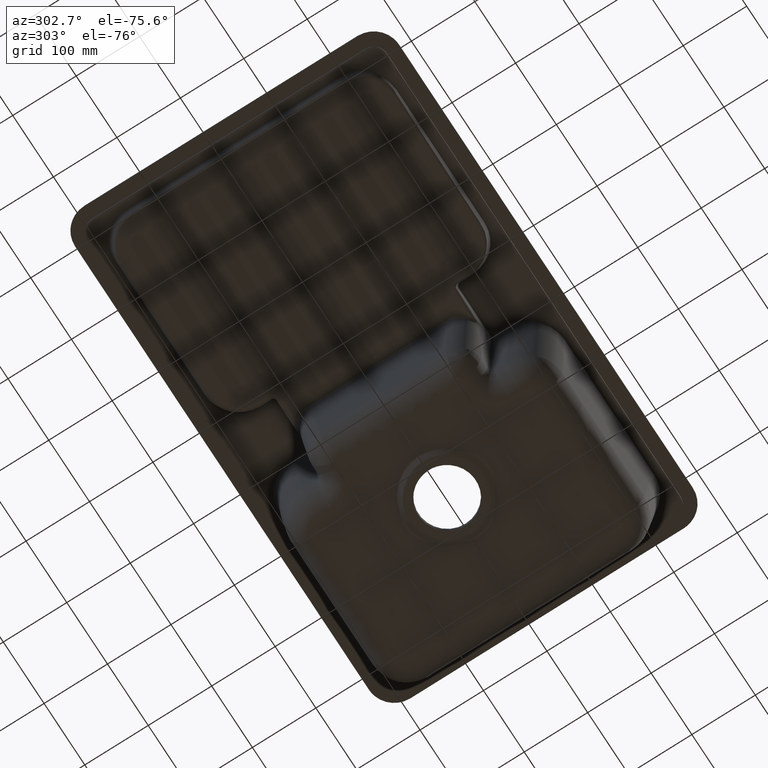
[diagram: clean part render]
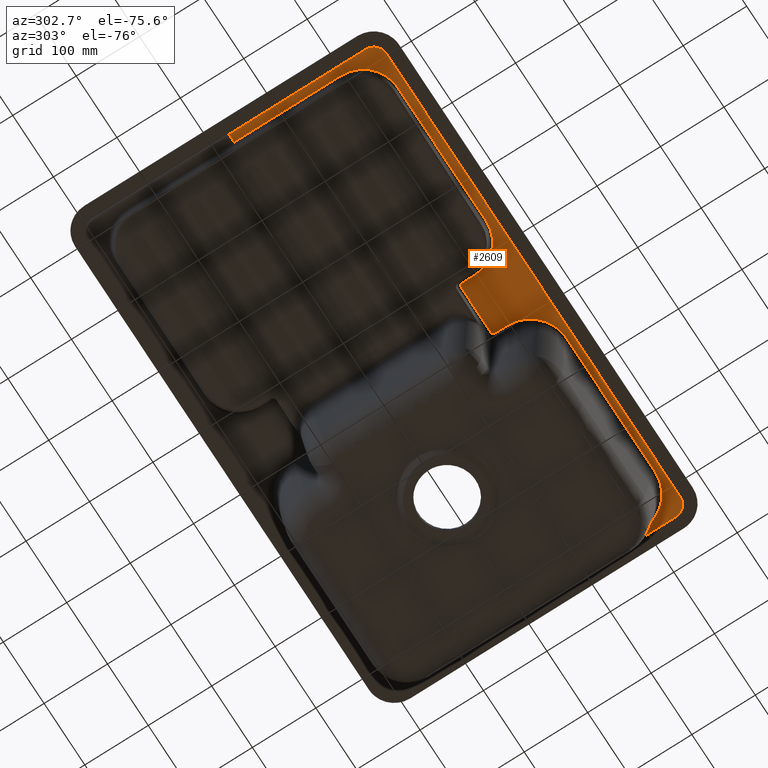
[diagram: same view with one face highlighted and labeled with its STEP entity id]
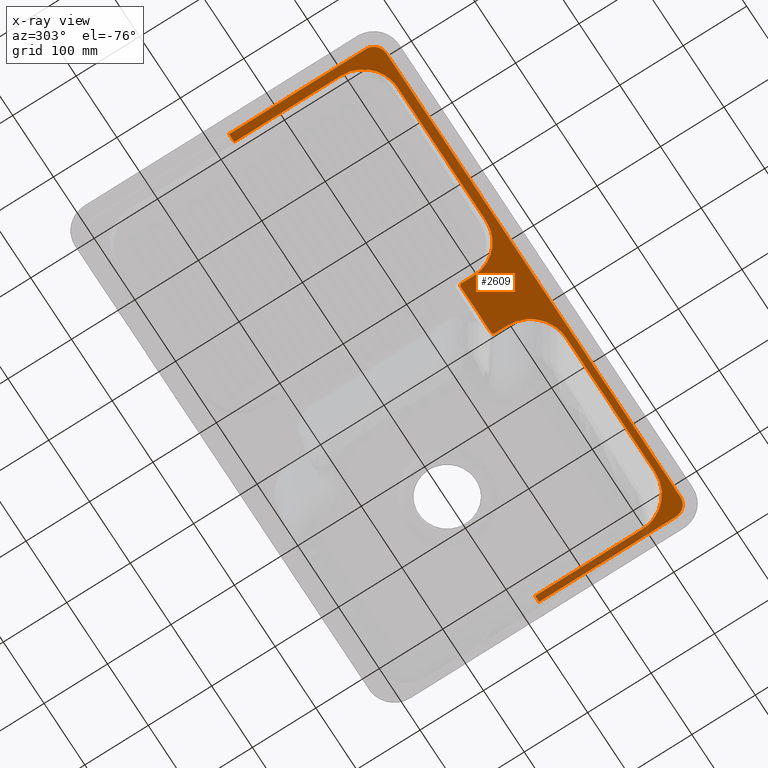
[diagram: x-ray of the same camera — body ghosted, the highlighted face saturated]
A machine part, auxiliary view. The second image highlights one B-rep face of the part: STEP entity #2609.
The next image is the same camera in x-ray: the body ghosted, the highlighted face saturated — about 8% of this face is hidden behind the body in this view.
In plain terms, the highlighted planar face has unit normal (0, 0, -1).
Its self-contained STEP definition (entity closure, byte-faithful):
#1504=B_SPLINE_CURVE_WITH_KNOTS('',3,(#14741,#14742,#14743,#14744,#14745,
#14746),.UNSPECIFIED.,.F.,.F.,(4,2,4),(0.,0.5,1.),.UNSPECIFIED.);
#1507=B_SPLINE_CURVE_WITH_KNOTS('',3,(#14768,#14769,#14770,#14771,#14772,
#14773),.UNSPECIFIED.,.F.,.F.,(4,2,4),(0.,0.5,1.),.UNSPECIFIED.);
#1849=B_SPLINE_CURVE_WITH_KNOTS('',3,(#23468,#23469,#23470,#23471),
 .UNSPECIFIED.,.F.,.F.,(4,4),(0.,1.),.UNSPECIFIED.);
#1850=B_SPLINE_CURVE_WITH_KNOTS('',3,(#23472,#23473,#23474,#23475),
 .UNSPECIFIED.,.F.,.F.,(4,4),(0.,1.),.UNSPECIFIED.);
#1899=B_SPLINE_CURVE_WITH_KNOTS('',3,(#24439,#24440,#24441,#24442),
 .UNSPECIFIED.,.F.,.F.,(4,4),(0.,1.),.UNSPECIFIED.);
#1900=B_SPLINE_CURVE_WITH_KNOTS('',3,(#24446,#24447,#24448,#24449,#24450,
#24451,#24452,#24453,#24454,#24455,#24456,#24457,#24458,#24459,#24460,#24461),
 .UNSPECIFIED.,.F.,.F.,(4,2,2,2,2,2,2,4),(0.,0.125,0.25,0.374999999999999,
0.499999999999999,0.624999999999999,0.749999999999999,1.),.UNSPECIFIED.);
#1901=B_SPLINE_CURVE_WITH_KNOTS('',3,(#24516,#24517,#24518,#24519,#24520,
#24521,#24522,#24523,#24524,#24525,#24526,#24527,#24528,#24529,#24530,#24531),
 .UNSPECIFIED.,.F.,.F.,(4,2,2,2,2,2,2,4),(0.,0.125000000000001,0.250000000000002,
0.375000000000003,0.500000000000004,0.625000000000004,0.750000000000005,
1.),.UNSPECIFIED.);
#1902=B_SPLINE_CURVE_WITH_KNOTS('',3,(#24584,#24585,#24586,#24587),
 .UNSPECIFIED.,.F.,.F.,(4,4),(0.,1.),.UNSPECIFIED.);
#1903=B_SPLINE_CURVE_WITH_KNOTS('',3,(#24593,#24594,#24595,#24596,#24597,
#24598,#24599,#24600,#24601,#24602,#24603,#24604),.UNSPECIFIED.,.F.,.F.,
(4,2,2,2,2,4),(0.,0.119043684676906,0.33060971908279,0.549960495010358,
0.775170534637991,1.),.UNSPECIFIED.);
#1904=B_SPLINE_CURVE_WITH_KNOTS('',3,(#24623,#24624,#24625,#24626,#24627,
#24628,#24629,#24630,#24631,#24632,#24633,#24634,#24635,#24636,#24637,#24638),
 .UNSPECIFIED.,.F.,.F.,(4,2,2,2,2,2,2,4),(0.,0.125,0.25,0.375,0.5,0.625,
0.75,1.),.UNSPECIFIED.);
#1905=B_SPLINE_CURVE_WITH_KNOTS('',3,(#24699,#24700,#24701,#24702,#24703,
#24704,#24705,#24706,#24707,#24708,#24709,#24710),.UNSPECIFIED.,.F.,.F.,
(4,2,2,2,2,4),(0.,0.140539717625024,0.354928383959337,0.56957508617983,
0.784808723160265,1.),.UNSPECIFIED.);
#1906=B_SPLINE_CURVE_WITH_KNOTS('',3,(#24729,#24730,#24731,#24732,#24733,
#24734,#24735,#24736,#24737,#24738,#24739,#24740,#24741,#24742,#24743,#24744),
 .UNSPECIFIED.,.F.,.F.,(4,2,2,2,2,2,2,4),(0.,0.125,0.25,0.375,0.5,0.625,
0.75,1.),.UNSPECIFIED.);
#2609=ADVANCED_FACE('',(#3442),#3043,.T.);
#3043=PLANE('',#11920);
#3442=FACE_OUTER_BOUND('',#4207,.T.);
#4207=EDGE_LOOP('',(#6314,#6315,#6316,#6317,#6318,#6319,#6320,#6321,#6322,
#6323,#6324,#6325,#6326,#6327,#6328,#6329,#6330,#6331,#6332,#6333));
#6314=ORIENTED_EDGE('',*,*,#9194,.T.);
#6315=ORIENTED_EDGE('',*,*,#9191,.T.);
#6316=ORIENTED_EDGE('',*,*,#9935,.T.);
#6317=ORIENTED_EDGE('',*,*,#10016,.T.);
#6318=ORIENTED_EDGE('',*,*,#10018,.T.);
#6319=ORIENTED_EDGE('',*,*,#10020,.T.);
#6320=ORIENTED_EDGE('',*,*,#10022,.T.);
#6321=ORIENTED_EDGE('',*,*,#10024,.T.);
#6322=ORIENTED_EDGE('',*,*,#10028,.T.);
#6323=ORIENTED_EDGE('',*,*,#10032,.T.);
#6324=ORIENTED_EDGE('',*,*,#10036,.T.);
#6325=ORIENTED_EDGE('',*,*,#10039,.T.);
#6326=ORIENTED_EDGE('',*,*,#10037,.T.);
#6327=ORIENTED_EDGE('',*,*,#10033,.T.);
#6328=ORIENTED_EDGE('',*,*,#10029,.T.);
#6329=ORIENTED_EDGE('',*,*,#10025,.T.);
#6330=ORIENTED_EDGE('',*,*,#9934,.T.);
#6331=ORIENTED_EDGE('',*,*,#9203,.T.);
#6332=ORIENTED_EDGE('',*,*,#9200,.T.);
#6333=ORIENTED_EDGE('',*,*,#9197,.T.);
#8141=VERTEX_POINT('',#14671);
#8149=VERTEX_POINT('',#14725);
#8151=VERTEX_POINT('',#14731);
#8153=VERTEX_POINT('',#14747);
#8155=VERTEX_POINT('',#14758);
#8157=VERTEX_POINT('',#14774);
#8594=VERTEX_POINT('',#22914);
#8600=VERTEX_POINT('',#23063);
#8654=VERTEX_POINT('',#24438);
#8655=VERTEX_POINT('',#24445);
#8656=VERTEX_POINT('',#24511);
#8657=VERTEX_POINT('',#24515);
#8658=VERTEX_POINT('',#24581);
#8659=VERTEX_POINT('',#24588);
#8660=VERTEX_POINT('',#24592);
#8661=VERTEX_POINT('',#24639);
#8662=VERTEX_POINT('',#24690);
#8663=VERTEX_POINT('',#24694);
#8664=VERTEX_POINT('',#24698);
#8665=VERTEX_POINT('',#24745);
#9191=EDGE_CURVE('',#8151,#8141,#10958,.T.);
#9194=EDGE_CURVE('',#8153,#8151,#1504,.T.);
#9197=EDGE_CURVE('',#8155,#8153,#10962,.T.);
#9200=EDGE_CURVE('',#8157,#8155,#1507,.T.);
#9203=EDGE_CURVE('',#8149,#8157,#10966,.T.);
#9934=EDGE_CURVE('',#8600,#8149,#1849,.T.);
#9935=EDGE_CURVE('',#8141,#8594,#1850,.T.);
#10016=EDGE_CURVE('',#8594,#8654,#1899,.T.);
#10018=EDGE_CURVE('',#8654,#8655,#1900,.T.);
#10020=EDGE_CURVE('',#8655,#8656,#11049,.T.);
#10022=EDGE_CURVE('',#8656,#8657,#1901,.T.);
#10024=EDGE_CURVE('',#8657,#8658,#11050,.T.);
#10025=EDGE_CURVE('',#8659,#8600,#1902,.T.);
#10028=EDGE_CURVE('',#8658,#8660,#1903,.T.);
#10029=EDGE_CURVE('',#8661,#8659,#1904,.T.);
#10032=EDGE_CURVE('',#8660,#8662,#11051,.T.);
#10033=EDGE_CURVE('',#8663,#8661,#11052,.T.);
#10036=EDGE_CURVE('',#8662,#8664,#1905,.T.);
#10037=EDGE_CURVE('',#8665,#8663,#1906,.T.);
#10039=EDGE_CURVE('',#8664,#8665,#11053,.T.);
#10958=LINE('',#14730,#11211);
#10962=LINE('',#14757,#11216);
#10966=LINE('',#14783,#11221);
#11049=LINE('',#24512,#11304);
#11050=LINE('',#24582,#11305);
#11051=LINE('',#24691,#11306);
#11052=LINE('',#24693,#11307);
#11053=LINE('',#24795,#11308);
#11211=VECTOR('',#12460,1.);
#11216=VECTOR('',#12467,1.);
#11221=VECTOR('',#12474,1.);
#11304=VECTOR('',#13427,1.);
#11305=VECTOR('',#13434,1.);
#11306=VECTOR('',#13447,1.);
#11307=VECTOR('',#13450,1.);
#11308=VECTOR('',#13459,1.);
#11920=AXIS2_PLACEMENT_3D('',#24994,#13488,#13489);
#12460=DIRECTION('',(1.39079142574835E-14,1.,0.));
#12467=DIRECTION('',(-1.,4.15719161087144E-14,0.));
#12474=DIRECTION('',(0.,-1.,0.));
#13427=DIRECTION('',(1.,0.,0.));
#13434=DIRECTION('',(0.,1.,0.));
#13447=DIRECTION('',(1.,0.,0.));
#13450=DIRECTION('',(1.,0.,0.));
#13459=DIRECTION('',(0.,-1.,0.));
#13488=DIRECTION('',(0.,0.,-1.));
#13489=DIRECTION('',(-0.843227198057321,-0.53755733876155,0.));
#14671=CARTESIAN_POINT('',(-380.50774798841,-1000.00000000539,-14.54));
#14725=CARTESIAN_POINT('',(380.50774798841,-1000.00000001077,-14.54));
#14730=CARTESIAN_POINT('',(-380.507747988409,-1107.76605769764,-14.54));
#14731=CARTESIAN_POINT('',(-380.50774798841,-1215.53211491045,-14.54));
#14741=CARTESIAN_POINT('',(-360.532114913926,-1235.50774798841,-14.54));
#14742=CARTESIAN_POINT('',(-365.818523167871,-1235.50299598645,-14.54));
#14743=CARTESIAN_POINT('',(-370.932380789627,-1233.38831314729,-14.54));
#14744=CARTESIAN_POINT('',(-378.388749539718,-1225.93283673726,-14.54));
#14745=CARTESIAN_POINT('',(-380.502998925999,-1220.82088733875,-14.54));
#14746=CARTESIAN_POINT('',(-380.50774798841,-1215.53211491393,-14.54));
#14747=CARTESIAN_POINT('',(-360.532114884531,-1235.5077479884,-14.54));
#14757=CARTESIAN_POINT('',(1.41137102005473E-11,-1235.5077479884,-14.54));
#14758=CARTESIAN_POINT('',(360.532114904128,-1235.50774798841,-14.54));
#14768=CARTESIAN_POINT('',(380.50774798841,-1215.53211491393,-14.54));
#14769=CARTESIAN_POINT('',(380.502995986426,-1220.81852316883,-14.54));
#14770=CARTESIAN_POINT('',(378.388313140216,-1225.93238079433,-14.54));
#14771=CARTESIAN_POINT('',(370.93283674433,-1233.38874953501,-14.54));
#14772=CARTESIAN_POINT('',(365.820887346911,-1235.50299892602,-14.54));
#14773=CARTESIAN_POINT('',(360.532114913926,-1235.50774798841,-14.54));
#14774=CARTESIAN_POINT('',(380.50774798841,-1215.53211490175,-14.54));
#14783=CARTESIAN_POINT('',(380.50774798841,-1107.76605769764,-14.54));
#22914=CARTESIAN_POINT('',(-367.899866231729,-1000.,-14.54));
#23063=CARTESIAN_POINT('',(370.814995985891,-1000.,-14.54));
#23468=CARTESIAN_POINT('',(370.81499598589,-1000.,-14.54));
#23469=CARTESIAN_POINT('',(374.045913320063,-1000.,-14.54));
#23470=CARTESIAN_POINT('',(377.276830654236,-1000.,-14.54));
#23471=CARTESIAN_POINT('',(380.507747988409,-1000.,-14.54));
#23472=CARTESIAN_POINT('',(-380.50774798841,-1000.,-14.54));
#23473=CARTESIAN_POINT('',(-376.305120736183,-1000.,-14.54));
#23474=CARTESIAN_POINT('',(-372.102493483956,-1000.,-14.54));
#23475=CARTESIAN_POINT('',(-367.899866231729,-1000.,-14.54));
#24438=CARTESIAN_POINT('',(-367.89986623173,-1167.84209413325,-14.54));
#24439=CARTESIAN_POINT('',(-367.899866231729,-1000.,-14.54));
#24440=CARTESIAN_POINT('',(-367.899866231729,-1055.94736471108,-14.54));
#24441=CARTESIAN_POINT('',(-367.899866231729,-1111.89472942217,-14.54));
#24442=CARTESIAN_POINT('',(-367.899866231729,-1167.84209413325,-14.54));
#24445=CARTESIAN_POINT('',(-312.842094133253,-1222.89986623173,-14.54));
#24446=CARTESIAN_POINT('',(-367.89986623173,-1167.84209413325,-14.54));
#24447=CARTESIAN_POINT('',(-367.89986623173,-1171.48593051998,-14.54));
#24448=CARTESIAN_POINT('',(-367.563735587139,-1175.07401392228,-14.54));
#24449=CARTESIAN_POINT('',(-366.221554230273,-1182.13906308942,-14.54));
#24450=CARTESIAN_POINT('',(-365.199831803539,-1185.65220901642,-14.54));
#24451=CARTESIAN_POINT('',(-362.498260245736,-1192.36597913369,-14.54));
#24452=CARTESIAN_POINT('',(-360.834852586598,-1195.5496295063,-14.54));
#24453=CARTESIAN_POINT('',(-356.878309257049,-1201.56797599968,-14.54));
#24454=CARTESIAN_POINT('',(-354.557223848443,-1204.42190248232,-14.54));
#24455=CARTESIAN_POINT('',(-349.465649865002,-1209.51901525561,-14.54));
#24456=CARTESIAN_POINT('',(-346.681343241304,-1211.79426863288,-14.54));
#24457=CARTESIAN_POINT('',(-340.629766798577,-1215.79138154892,-14.54));
#24458=CARTESIAN_POINT('',(-337.396878386866,-1217.48184190957,-14.54));
#24459=CARTESIAN_POINT('',(-327.389233948023,-1221.52070604673,-14.54));
#24460=CARTESIAN_POINT('',(-320.131708082274,-1222.89986623173,-14.54));
#24461=CARTESIAN_POINT('',(-312.842094133253,-1222.89986623173,-14.54));
#24511=CARTESIAN_POINT('',(-97.1579058667474,-1222.89986623173,-14.54));
#24512=CARTESIAN_POINT('',(-205.,-1222.89986623173,-14.54));
#24515=CARTESIAN_POINT('',(-42.1001337682705,-1167.84209413325,-14.54));
#24516=CARTESIAN_POINT('',(-97.1579058667474,-1222.89986623173,-14.54));
#24517=CARTESIAN_POINT('',(-93.5140694800155,-1222.89986623173,-14.54));
#24518=CARTESIAN_POINT('',(-89.9259860777168,-1222.56373558714,-14.54));
#24519=CARTESIAN_POINT('',(-82.8609369105802,-1221.22155423027,-14.54));
#24520=CARTESIAN_POINT('',(-79.3477909835805,-1220.19983180354,-14.54));
#24521=CARTESIAN_POINT('',(-72.6340208663055,-1217.49826024574,-14.54));
#24522=CARTESIAN_POINT('',(-69.4503704937044,-1215.8348525866,-14.54));
#24523=CARTESIAN_POINT('',(-63.4320240003244,-1211.87830925705,-14.54));
#24524=CARTESIAN_POINT('',(-60.5780975176832,-1209.55722384844,-14.54));
#24525=CARTESIAN_POINT('',(-55.4809847443882,-1204.465649865,-14.54));
#24526=CARTESIAN_POINT('',(-53.2057313671158,-1201.6813432413,-14.54));
#24527=CARTESIAN_POINT('',(-49.2086184510851,-1195.62976679858,-14.54));
#24528=CARTESIAN_POINT('',(-47.518158090433,-1192.39687838687,-14.54));
#24529=CARTESIAN_POINT('',(-43.4792939532717,-1182.38923394802,-14.54));
#24530=CARTESIAN_POINT('',(-42.1001337682705,-1175.13170808227,-14.54));
#24531=CARTESIAN_POINT('',(-42.1001337682705,-1167.84209413325,-14.54));
#24581=CARTESIAN_POINT('',(-42.1001337682704,-1148.76802650805,-14.54));
#24582=CARTESIAN_POINT('',(-42.1001337682705,-1158.30506032065,-14.54));
#24584=CARTESIAN_POINT('',(370.814995985891,-1168.95384512108,-14.54));
#24585=CARTESIAN_POINT('',(370.814995985891,-1112.63589674739,-14.54));
#24586=CARTESIAN_POINT('',(370.814995985891,-1056.31794837369,-14.54));
#24587=CARTESIAN_POINT('',(370.814995985891,-1000.,-14.54));
#24588=CARTESIAN_POINT('',(370.814995985891,-1168.95384512108,-14.54));
#24592=CARTESIAN_POINT('',(-39.0503787994599,-1145.81499598589,-14.54));
#24593=CARTESIAN_POINT('',(-42.1001337682704,-1148.76802650805,-14.54));
#24594=CARTESIAN_POINT('',(-42.1001337682704,-1148.57989177495,-14.54));
#24595=CARTESIAN_POINT('',(-42.0817098881369,-1148.39086673518,-14.54));
#24596=CARTESIAN_POINT('',(-41.9811516105969,-1147.88159096774,-14.54));
#24597=CARTESIAN_POINT('',(-41.8586322671897,-1147.56361918613,-14.54));
#24598=CARTESIAN_POINT('',(-41.5125849846019,-1146.98536270193,-14.54));
#24599=CARTESIAN_POINT('',(-41.2804286148109,-1146.71892958181,-14.54));
#24600=CARTESIAN_POINT('',(-40.7407460825114,-1146.2810678496,-14.54));
#24601=CARTESIAN_POINT('',(-40.4233946014601,-1146.10563658773,-14.54));
#24602=CARTESIAN_POINT('',(-39.7587071579614,-1145.87441354998,-14.54));
#24603=CARTESIAN_POINT('',(-39.4020850272081,-1145.81499598589,-14.54));
#24604=CARTESIAN_POINT('',(-39.0503787994599,-1145.81499598589,-14.54));
#24623=CARTESIAN_POINT('',(313.953845121081,-1225.81499598589,-14.54));
#24624=CARTESIAN_POINT('',(317.708876941541,-1225.81499598589,-14.54));
#24625=CARTESIAN_POINT('',(321.401599566329,-1225.44842447027,-14.54));
#24626=CARTESIAN_POINT('',(328.667175154038,-1224.01007568002,-14.54));
#24627=CARTESIAN_POINT('',(332.277583701039,-1222.92093179061,-14.54));
#24628=CARTESIAN_POINT('',(339.164303277714,-1220.07450082661,-14.54));
#24629=CARTESIAN_POINT('',(342.430624423987,-1218.33184351024,-14.54));
#24630=CARTESIAN_POINT('',(348.612001878873,-1214.21271988089,-14.54));
#24631=CARTESIAN_POINT('',(351.539468783608,-1211.81357718288,-14.54));
#24632=CARTESIAN_POINT('',(356.785807020268,-1206.571123941,-14.54));
#24633=CARTESIAN_POINT('',(359.139301135651,-1203.71019761555,-14.54));
#24634=CARTESIAN_POINT('',(363.29468437234,-1197.49805275126,-14.54));
#24635=CARTESIAN_POINT('',(365.060908779456,-1194.18839888594,-14.54));
#24636=CARTESIAN_POINT('',(369.312600097373,-1183.92794739664,-14.54));
#24637=CARTESIAN_POINT('',(370.814995985891,-1176.46404034367,-14.54));
#24638=CARTESIAN_POINT('',(370.814995985891,-1168.95384512108,-14.54));
#24639=CARTESIAN_POINT('',(313.953845121081,-1225.81499598589,-14.54));
#24690=CARTESIAN_POINT('',(36.1923118633297,-1145.81499598589,-14.54));
#24691=CARTESIAN_POINT('',(-1.4290334680651,-1145.81499598589,-14.54));
#24693=CARTESIAN_POINT('',(205.,-1225.81499598589,-14.54));
#24694=CARTESIAN_POINT('',(96.0461548789191,-1225.81499598589,-14.54));
#24698=CARTESIAN_POINT('',(39.1850040141092,-1148.80768813667,-14.54));
#24699=CARTESIAN_POINT('',(36.1923118633297,-1145.81499598589,-14.54));
#24700=CARTESIAN_POINT('',(36.4131630753795,-1145.81499598589,-14.54));
#24701=CARTESIAN_POINT('',(36.6353504368311,-1145.83962293667,-14.54));
#24702=CARTESIAN_POINT('',(37.1768756966065,-1145.96135459259,-14.54));
#24703=CARTESIAN_POINT('',(37.4948154853702,-1146.09173303282,-14.54));
#24704=CARTESIAN_POINT('',(38.0622121068373,-1146.44569868373,-14.54));
#24705=CARTESIAN_POINT('',(38.3193956483953,-1146.67428123695,-14.54));
#24706=CARTESIAN_POINT('',(38.7382463514925,-1147.1972527703,-14.54));
#24707=CARTESIAN_POINT('',(38.9054587028251,-1147.49906372838,-14.54));
#24708=CARTESIAN_POINT('',(39.1272880408261,-1148.13220956275,-14.54));
#24709=CARTESIAN_POINT('',(39.1850040141092,-1148.47226760349,-14.54));
#24710=CARTESIAN_POINT('',(39.1850040141092,-1148.80768813667,-14.54));
#24729=CARTESIAN_POINT('',(39.1850040141092,-1168.95384512108,-14.54));
#24730=CARTESIAN_POINT('',(39.1850040141092,-1172.70887694154,-14.54));
#24731=CARTESIAN_POINT('',(39.5515755297268,-1176.40159956633,-14.54));
#24732=CARTESIAN_POINT('',(40.9899243199765,-1183.66717515404,-14.54));
#24733=CARTESIAN_POINT('',(42.0790682093858,-1187.27758370104,-14.54));
#24734=CARTESIAN_POINT('',(44.9254991733896,-1194.16430327771,-14.54));
#24735=CARTESIAN_POINT('',(46.6681564897568,-1197.43062442399,-14.54));
#24736=CARTESIAN_POINT('',(50.7872801191112,-1203.61200187887,-14.54));
#24737=CARTESIAN_POINT('',(53.1864228171176,-1206.53946878361,-14.54));
#24738=CARTESIAN_POINT('',(58.4288760589969,-1211.78580702027,-14.54));
#24739=CARTESIAN_POINT('',(61.2898023844508,-1214.13930113565,-14.54));
#24740=CARTESIAN_POINT('',(67.501947248742,-1218.29468437234,-14.54));
#24741=CARTESIAN_POINT('',(70.8116011140625,-1220.06090877946,-14.54));
#24742=CARTESIAN_POINT('',(81.0720526033605,-1224.31260009737,-14.54));
#24743=CARTESIAN_POINT('',(88.5359596563291,-1225.81499598589,-14.54));
#24744=CARTESIAN_POINT('',(96.0461548789192,-1225.81499598589,-14.54));
#24745=CARTESIAN_POINT('',(39.1850040141091,-1168.95384512108,-14.54));
#24795=CARTESIAN_POINT('',(39.1850040141091,-1158.88076662888,-14.54));
#24994=CARTESIAN_POINT('',(488.9791962137,-1161.66014308899,-14.54));